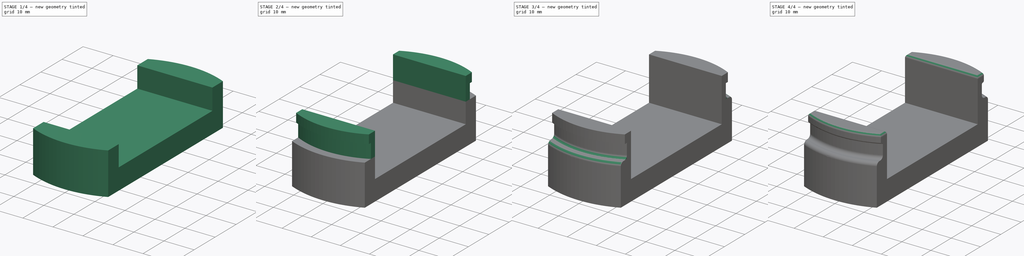
[diagram: build sequence overview — one tinted view per stage of 4, left to right]
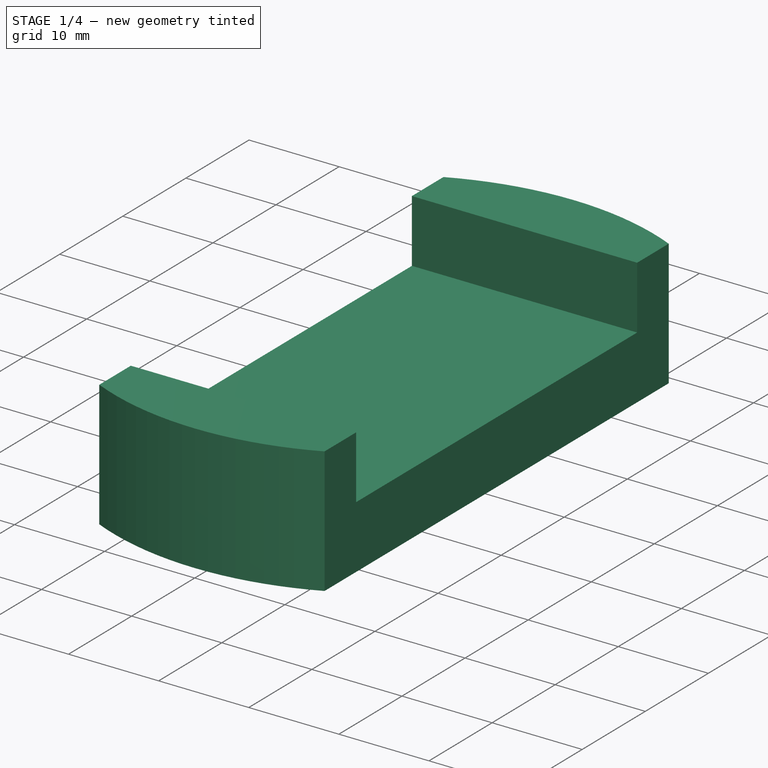
[diagram: stage 1 of 4 — iso view after this stage's code; geometry added in this stage tinted green]
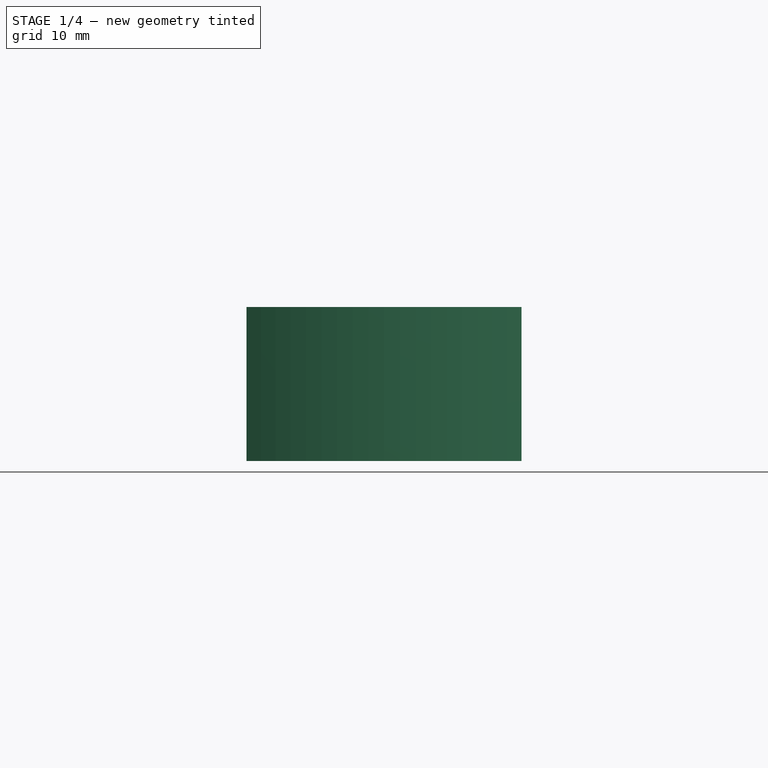
[diagram: stage 1 of 4 — front view after this stage's code; geometry added in this stage tinted green]
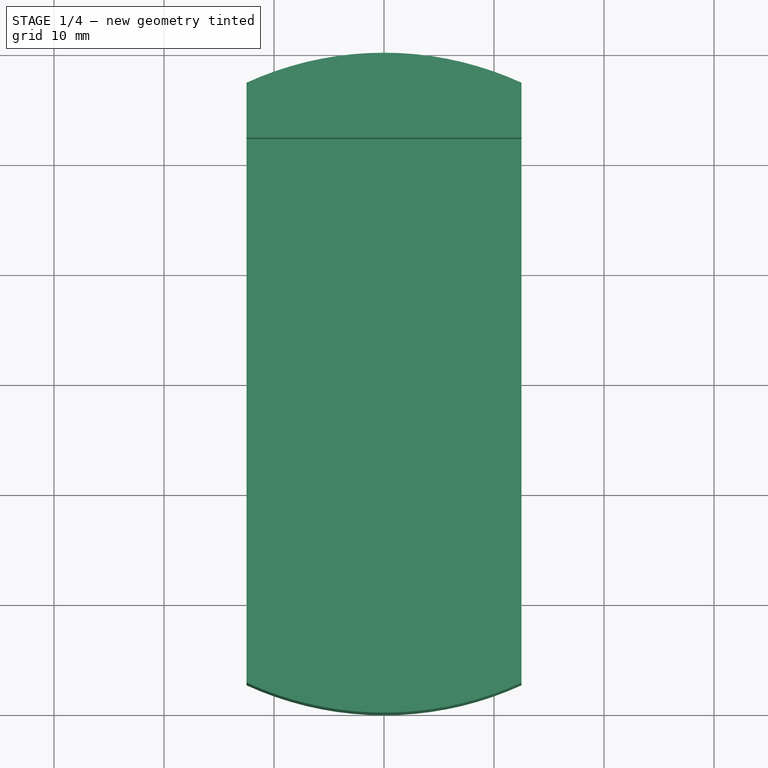
[diagram: stage 1 of 4 — top view after this stage's code; geometry added in this stage tinted green]
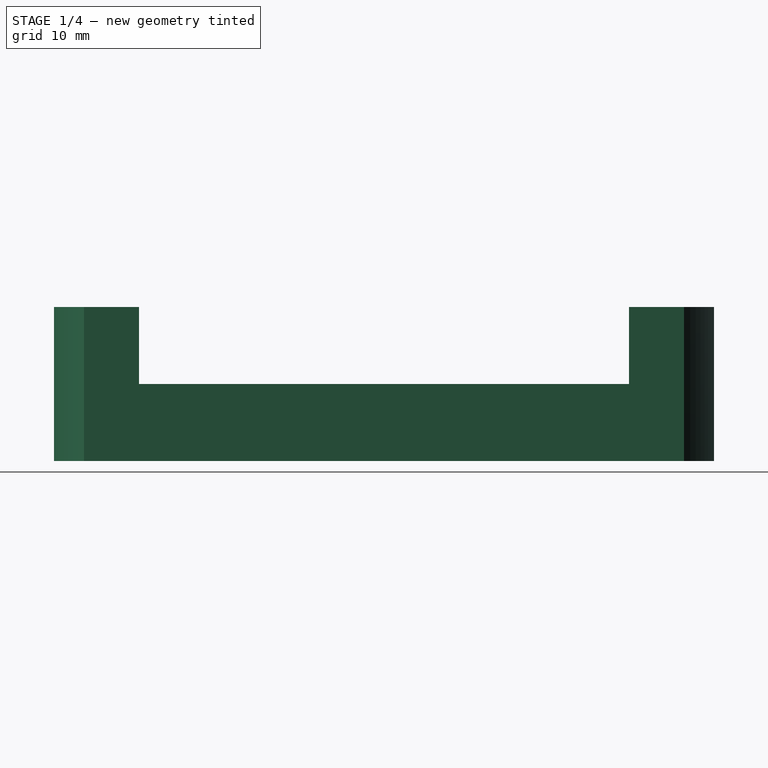
[diagram: stage 1 of 4 — right view after this stage's code; geometry added in this stage tinted green]
FCSTD DOCUMENT  (FreeCAD 0.21R33771 (Git))
Label: Tiguan-VentMount
License: All rights reserved
LicenseURL: https://en.wikipedia.org/wiki/All_rights_reserved
objects: Sketcher::SketchObject×5, PartDesign::Pad×4, PartDesign::Fillet×4, PartDesign::Pocket×1, PartDesign::Body×1
note: 24 computed .brp shape members not serialized (recipe doc carries the construction recipe); baked Part::Feature solids carry a one-line shape summary decoded from their .brp

FEATURE [Sketcher::SketchObject] Sketch
  FullyConstrained = true
  MapMode = 5
  Support = -> [XY_Plane]
  sketch-geometry (4):
    g0: LineSegment StartX=-12.5 StartY=27.2718 StartZ=0 EndX=-12.5 EndY=-27.2718 EndZ=0
    g1: LineSegment StartX=12.5 StartY=27.2718 StartZ=0 EndX=12.5 EndY=-27.2718 EndZ=0
    g2: ArcOfCircle CenterX=0 CenterY=0 CenterZ=0 NormalX=0 NormalY=0 NormalZ=1 AngleXU=0 Radius=30 StartAngle=1.14102 EndAngle=2.00057
    g3: ArcOfCircle CenterX=0 CenterY=0 CenterZ=0 NormalX=0 NormalY=0 NormalZ=1 AngleXU=0 Radius=30 StartAngle=4.28261 EndAngle=5.14216
  constraints (12):
    c: Vertical(g0)
    c: Vertical(g1)
    c: Coincident(g2,g-1)
    c: Coincident(g2,g0)
    c: Coincident(g2,g1)
    c: Coincident(g3,g2)
    c: Coincident(g3,g0)
    c: Coincident(g3,g1)
    c: Equal(g0,g1)
    c: Equal(g2,g3)
    c: Diameter(g2) = 60
    c: DistanceX(g0,g1) = 25
FEATURE [PartDesign::Pad] Pad
  Direction = (0,0,1)
  Length = 7
  Length2 = 10
  Profile = -> Sketch
  ReferenceAxis = -> Sketch [N_Axis]
  Type = 0
FEATURE [Sketcher::SketchObject] Sketch001
  ExternalGeometry = -> [Pad]
  FullyConstrained = true
  MapMode = 5
  Placement = pos=(0,0,7) rot=(0,0,1;0rad)
  Support = -> [Pad]
  sketch-geometry (8):
    g0: LineSegment StartX=-12.5 StartY=22.2718 StartZ=0 EndX=12.5 EndY=22.2718 EndZ=0
    g1: LineSegment StartX=-12.5 StartY=-22.2718 StartZ=0 EndX=12.5 EndY=-22.2718 EndZ=0
    g2: ArcOfCircle CenterX=5.753e-13 CenterY=-2.686e-13 CenterZ=0 NormalX=0 NormalY=0 NormalZ=1 AngleXU=0 Radius=30 StartAngle=4.28261 EndAngle=5.14216
    g3: ArcOfCircle CenterX=6.08e-13 CenterY=2.585e-13 CenterZ=0 NormalX=0 NormalY=0 NormalZ=1 AngleXU=0 Radius=30 StartAngle=1.14102 EndAngle=2.00057
    g4: LineSegment StartX=-12.5 StartY=22.2718 StartZ=0 EndX=-12.5 EndY=27.2718 EndZ=0
    g5: LineSegment StartX=12.5 StartY=27.2718 StartZ=0 EndX=12.5 EndY=22.2718 EndZ=0
    g6: LineSegment StartX=-12.5 StartY=-22.2718 StartZ=0 EndX=-12.5 EndY=-27.2718 EndZ=0
    g7: LineSegment StartX=12.5 StartY=-22.2718 StartZ=0 EndX=12.5 EndY=-27.2718 EndZ=0
  constraints (22):
    c: PointOnObject(g0,g-6)
    c: PointOnObject(g0,g-5)
    c: Horizontal(g0)
    c: PointOnObject(g1,g-6)
    c: PointOnObject(g1,g-5)
    c: Horizontal(g1)
    c: Coincident(g2,g-5)
    c: Coincident(g2,g-6)
    c: Equal(g2,g-4)
    c: Coincident(g3,g-6)
    c: Coincident(g3,g-5)
    c: Equal(g3,g-3)
    c: Coincident(g4,g0)
    c: Coincident(g4,g3)
    c: Coincident(g5,g3)
    c: Coincident(g5,g0)
    c: Coincident(g6,g1)
    c: Coincident(g6,g2)
    c: Coincident(g7,g1)
    c: Coincident(g7,g2)
    c: Equal(g4,g6)
    c: DistanceY(g0,g3) = 5
FEATURE [PartDesign::Pad] Pad001
  BaseFeature = -> Pad
  Direction = (0,0,1)
  Length = 7
  Length2 = 10
  Profile = -> Sketch001
  ReferenceAxis = -> Sketch001 [N_Axis]
  Type = 0
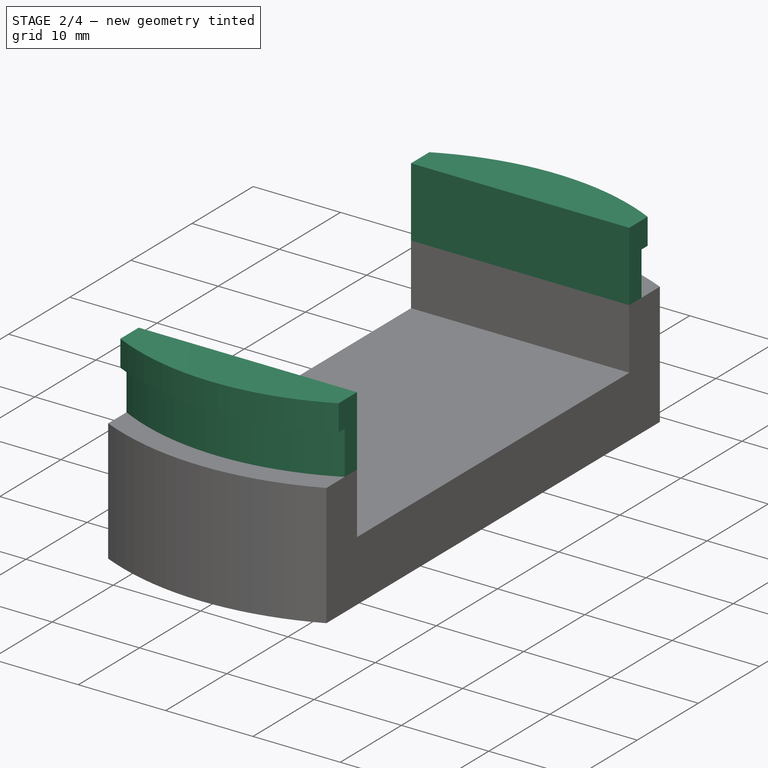
[diagram: stage 2 of 4 — iso view after this stage's code; geometry added in this stage tinted green]
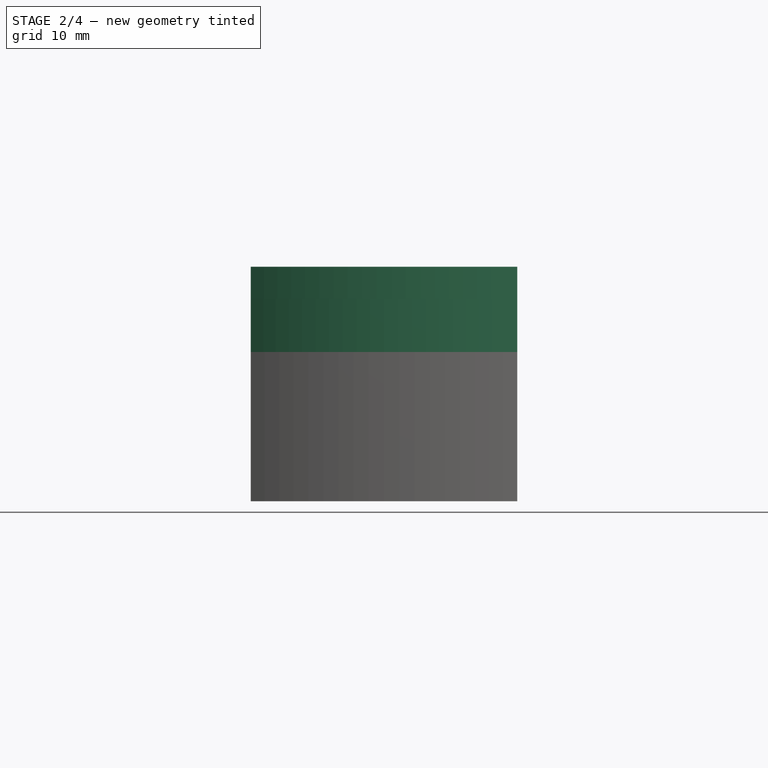
[diagram: stage 2 of 4 — front view after this stage's code; geometry added in this stage tinted green]
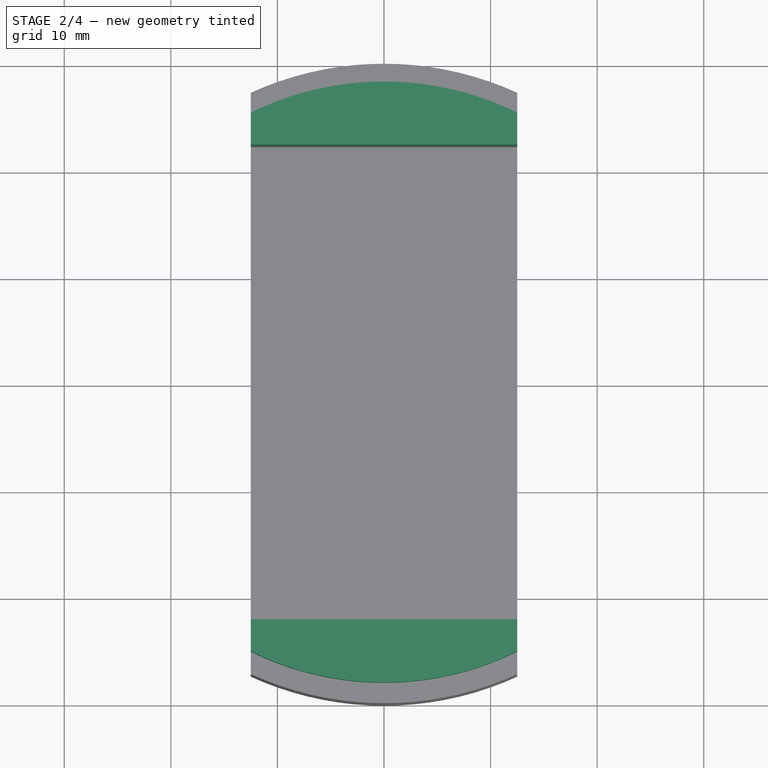
[diagram: stage 2 of 4 — top view after this stage's code; geometry added in this stage tinted green]
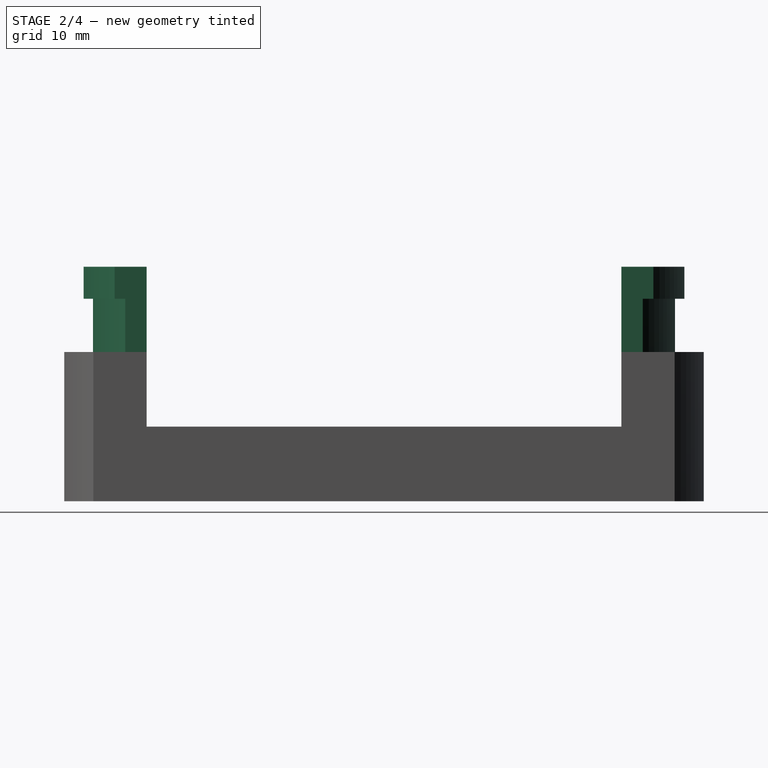
[diagram: stage 2 of 4 — right view after this stage's code; geometry added in this stage tinted green]
FEATURE [Sketcher::SketchObject] Sketch002
  ExternalGeometry = -> [Pad001]
  FullyConstrained = true
  MapMode = 5
  Placement = pos=(0,0,14) rot=(0,0,1;0rad)
  Support = -> [Pad001]
  sketch-geometry (13):
    g0: LineSegment StartX=-12.5 StartY=22.2718 StartZ=0 EndX=12.5 EndY=22.2718 EndZ=0
    g1: LineSegment StartX=-12.5 StartY=-22.2718 StartZ=0 EndX=12.5 EndY=-22.2718 EndZ=0
    g2: ArcOfCircle CenterX=4.4e-15 CenterY=2.9945e-12 CenterZ=0 NormalX=0 NormalY=0 NormalZ=1 AngleXU=0 Radius=27.3015 StartAngle=1.09522 EndAngle=2.04637
    g3: GeomPoint X=0 Y=27.3015 Z=0
    g4: LineSegment StartX=0 StartY=30 StartZ=0 EndX=0 EndY=27.3015 EndZ=0
    g5: ArcOfCircle CenterX=7e-16 CenterY=-2.9286e-12 CenterZ=0 NormalX=0 NormalY=0 NormalZ=1 AngleXU=0 Radius=27.3015 StartAngle=4.23681 EndAngle=5.18797
    g6: LineSegment StartX=0 StartY=-30 StartZ=0 EndX=0 EndY=-27.3015 EndZ=0
    g7: LineSegment StartX=-12.5 StartY=27.2718 StartZ=0 EndX=-11.3756 EndY=24.8186 EndZ=0
    g8: LineSegment StartX=-12.5 StartY=-27.2718 StartZ=0 EndX=-11.3756 EndY=-24.8186 EndZ=0
    g9: LineSegment StartX=12.5 StartY=-22.2718 StartZ=0 EndX=12.5 EndY=-24.2718 EndZ=0
    g10: LineSegment StartX=-12.5 StartY=-22.2718 StartZ=0 EndX=-12.5 EndY=-24.2718 EndZ=0
    g11: LineSegment StartX=-12.5 StartY=24.2718 StartZ=0 EndX=-12.5 EndY=22.2718 EndZ=0
    g12: LineSegment StartX=12.5 StartY=24.2718 StartZ=0 EndX=12.5 EndY=22.2718 EndZ=0
  constraints (35):
    c: Coincident(g0,g-5)
    c: Coincident(g0,g-5)
    c: Coincident(g1,g-8)
    c: PointOnObject(g2,g-3)
    c: Symmetric(g2,g2,g-2)
    c: PointOnObject(g3,g2)
    c: PointOnObject(g3,g-2)
    c: PointOnObject(g4,g-9)
    c: Coincident(g4,g3)
    c: Vertical(g4)
    c: DistanceY(g0,g2) = 2
    c: PointOnObject(g5,g-6)
    c: Symmetric(g5,g5,g-2)
    c: PointOnObject(g6,g-10)
    c: PointOnObject(g6,g5)
    c: Vertical(g6)
    c: PointOnObject(g6,g-2)
    c: Coincident(g7,g-9)
    c: PointOnObject(g7,g2)
    c: Perpendicular(g2,g7)
    c: Equal(g7,g4)
    c: Coincident(g8,g-10)
    c: PointOnObject(g8,g5)
    c: Perpendicular(g5,g8)
    c: DistanceY(g5,g1) = 2
    c: Coincident(g1,g-7)
    c: Equal(g8,g6)
    c: Coincident(g9,g1)
    c: Coincident(g9,g5)
    c: Coincident(g10,g1)
    c: Coincident(g10,g5)
    c: Coincident(g11,g2)
    c: Coincident(g11,g0)
    c: Coincident(g12,g2)
    c: Coincident(g12,g0)
FEATURE [PartDesign::Pad] Pad002
  BaseFeature = -> Pad001
  Direction = (0,0,1)
  Length = 5
  Length2 = 10
  Profile = -> Sketch002
  ReferenceAxis = -> Sketch002 [N_Axis]
  Type = 0
FEATURE [Sketcher::SketchObject] Sketch003
  ExternalGeometry = -> [Pad002]
  FullyConstrained = true
  MapMode = 5
  Placement = pos=(0,0,19) rot=(0,0,1;0rad)
  Support = -> [Pad002]
  sketch-geometry (12):
    g0: LineSegment StartX=-12.5 StartY=-22.2718 StartZ=0 EndX=12.5 EndY=-22.2718 EndZ=0
    g1: LineSegment StartX=-12.5 StartY=22.2718 StartZ=0 EndX=12.5 EndY=22.2718 EndZ=0
    g2: LineSegment StartX=-12.5 StartY=-22.2718 StartZ=0 EndX=-12.5 EndY=-25.2718 EndZ=0
    g3: LineSegment StartX=12.5 StartY=-22.2718 StartZ=0 EndX=12.5 EndY=-25.2718 EndZ=0
    g4: LineSegment StartX=-12.5 StartY=22.2718 StartZ=0 EndX=-12.5 EndY=25.2718 EndZ=0
    g5: LineSegment StartX=12.5 StartY=22.2718 StartZ=0 EndX=12.5 EndY=25.2718 EndZ=0
    g6: ArcOfCircle CenterX=1.4e-15 CenterY=2.9584e-12 CenterZ=0 NormalX=0 NormalY=0 NormalZ=1 AngleXU=0 Radius=28.1942 StartAngle=1.11146 EndAngle=2.03013
    g7: ArcOfCircle CenterX=1.9e-15 CenterY=-2.9337e-12 CenterZ=0 NormalX=0 NormalY=0 NormalZ=1 AngleXU=0 Radius=28.1942 StartAngle=4.25305 EndAngle=5.17173
    g8: LineSegment StartX=0 StartY=28.1942 StartZ=0 EndX=0 EndY=27.3015 EndZ=0
    g9: LineSegment StartX=12.5 StartY=25.2718 StartZ=0 EndX=12.1042 EndY=24.4716 EndZ=0
    g10: LineSegment StartX=0 StartY=-27.3015 StartZ=0 EndX=0 EndY=-28.1942 EndZ=0
    g11: LineSegment StartX=-12.5 StartY=-25.2718 StartZ=0 EndX=-12.1042 EndY=-24.4716 EndZ=0
  constraints (36):
    c: Coincident(g0,g-4)
    c: Coincident(g1,g-3)
    c: Coincident(g2,g0)
    c: Coincident(g3,g0)
    c: Vertical(g2)
    c: Vertical(g3)
    c: Coincident(g4,g1)
    c: Coincident(g5,g1)
    c: Vertical(g5)
    c: Vertical(g4)
    c: Coincident(g6,g4)
    c: Coincident(g6,g5)
    c: Coincident(g1,g-3)
    c: Equal(g4,g5)
    c: Coincident(g7,g2)
    c: Coincident(g7,g3)
    c: Coincident(g0,g-4)
    c: Equal(g2,g3)
    c: PointOnObject(g8,g6)
    c: PointOnObject(g8,g-6)
    c: Vertical(g8)
    c: PointOnObject(g8,g-2)
    c: Coincident(g9,g5)
    c: PointOnObject(g9,g-6)
    c: Perpendicular(g-6,g9)
    c: Equal(g8,g9)
    c: DistanceY(g1,g5) = 3
    c: PointOnObject(g10,g-5)
    c: PointOnObject(g10,g7)
    c: Vertical(g10)
    c: Coincident(g11,g2)
    c: PointOnObject(g11,g-5)
    c: Perpendicular(g-5,g11)
    c: Equal(g11,g10)
    c: Equal(g5,g3)
    c: PointOnObject(g10,g-2)
FEATURE [PartDesign::Pad] Pad003
  BaseFeature = -> Pad002
  Direction = (0,0,1)
  Length = 3
  Length2 = 10
  Profile = -> Sketch003
  ReferenceAxis = -> Sketch003 [N_Axis]
  Type = 0
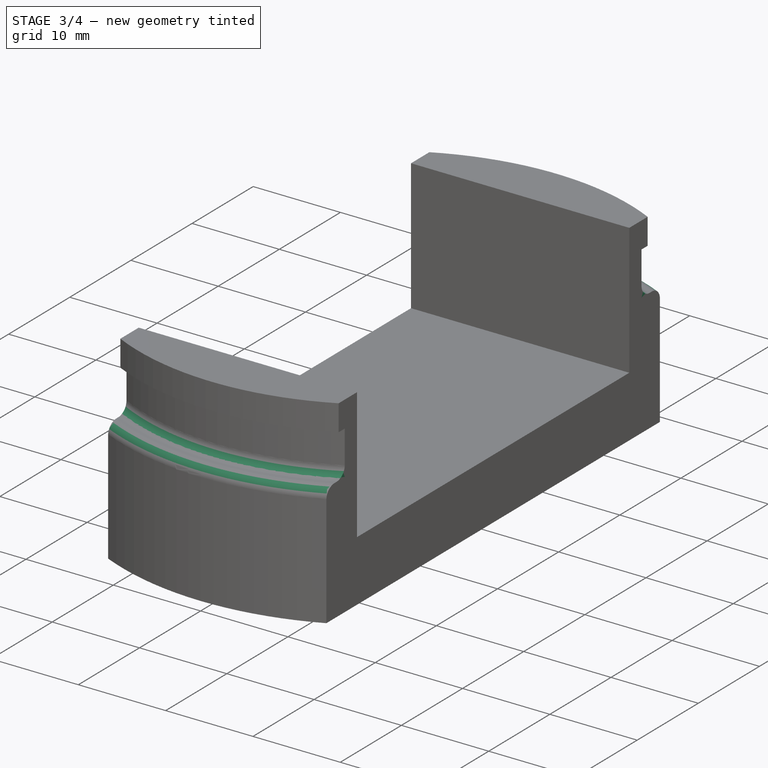
[diagram: stage 3 of 4 — iso view after this stage's code; geometry added in this stage tinted green]
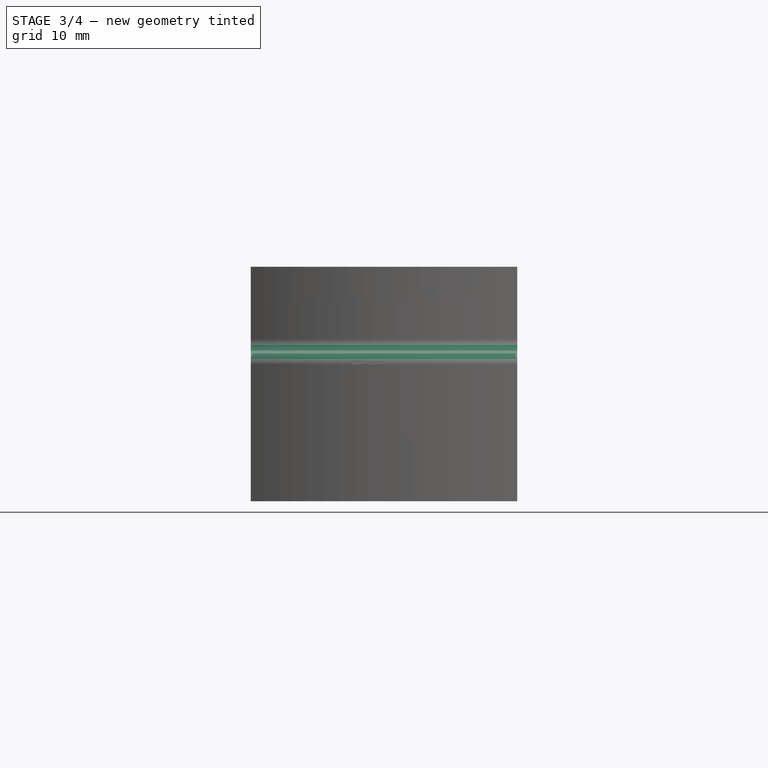
[diagram: stage 3 of 4 — front view after this stage's code; geometry added in this stage tinted green]
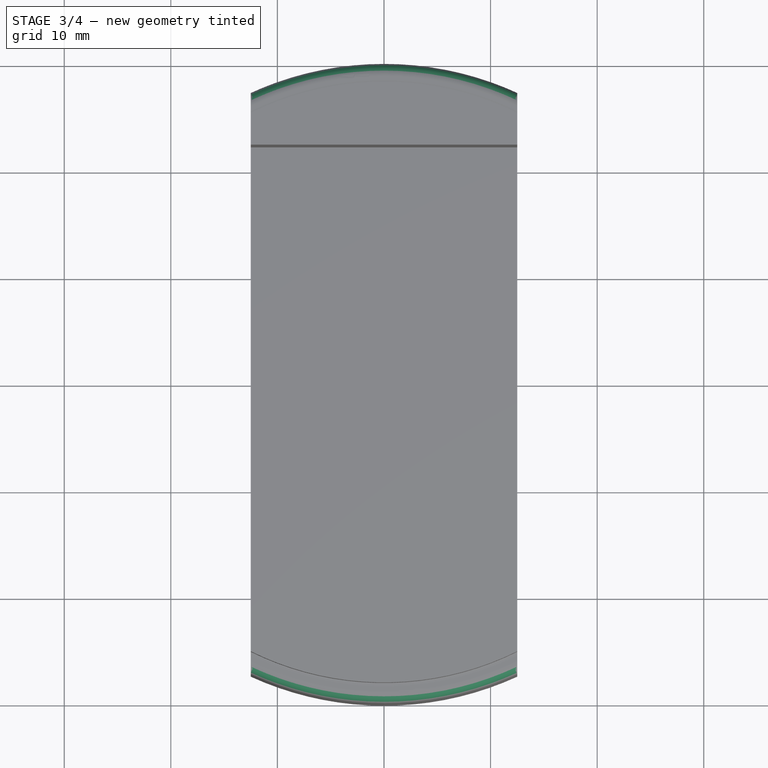
[diagram: stage 3 of 4 — top view after this stage's code; geometry added in this stage tinted green]
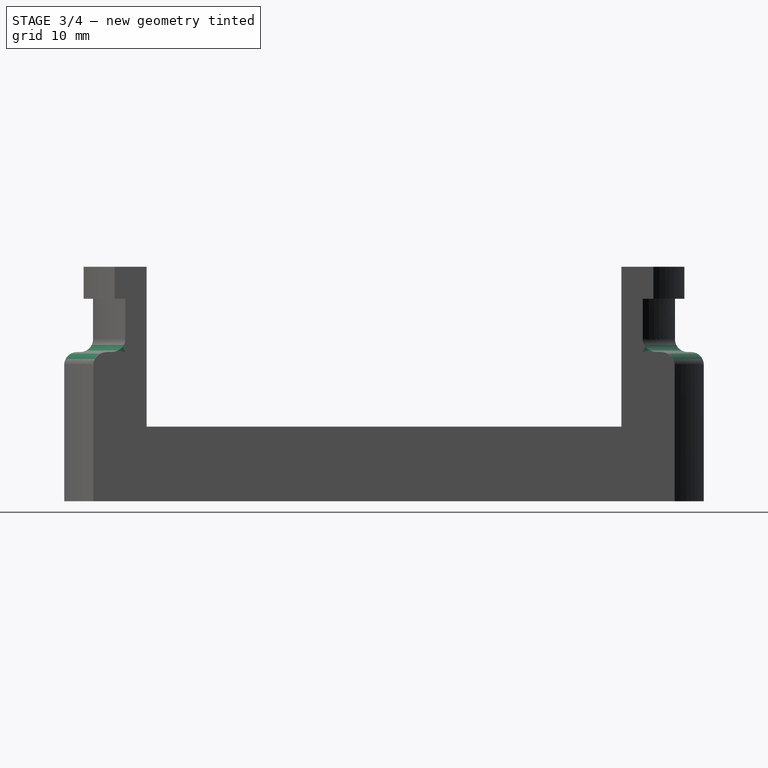
[diagram: stage 3 of 4 — right view after this stage's code; geometry added in this stage tinted green]
FEATURE [Sketcher::SketchObject] Sketch004
  FullyConstrained = true
  MapMode = 5
  Placement = pos=(0,0,0) rot=(1,0,0;3.14159rad)
  Support = -> [Pad003]
  sketch-geometry (2):
    g0: Circle CenterX=0 CenterY=0 CenterZ=0 NormalX=0 NormalY=0 NormalZ=1 AngleXU=0 Radius=10
    g1: Circle CenterX=0 CenterY=0 CenterZ=0 NormalX=0 NormalY=0 NormalZ=1 AngleXU=0 Radius=1.5
  constraints (4):
    c: Coincident(g0,g-1)
    c: Diameter(g0) = 20
    c: Coincident(g1,g0)
    c: Diameter(g1) = 3
FEATURE [PartDesign::Pocket] Pocket
  BaseFeature = -> Pad003
  Direction = (0,0,1)
  Length = 4
  Length2 = 5
  Profile = -> Sketch004
  ReferenceAxis = -> Sketch004 [N_Axis]
  Type = 0
FEATURE [PartDesign::Fillet] Fillet
  Base = -> Pocket [Edge78,Edge16]
  BaseFeature = -> Pocket
  Radius = 1
  SupportTransform = false
  UseAllEdges = false
FEATURE [PartDesign::Fillet] Fillet001
  Base = -> Fillet [Edge43,Edge24,Edge52,Edge41]
  BaseFeature = -> Fillet
  Radius = 1.2
  SupportTransform = false
  UseAllEdges = false
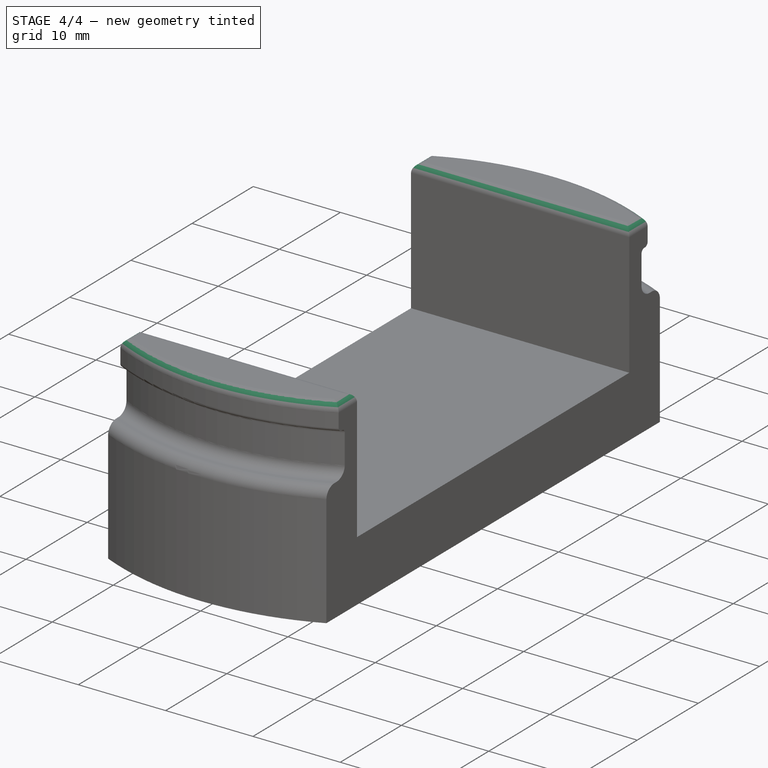
[diagram: stage 4 of 4 — iso view after this stage's code; geometry added in this stage tinted green]
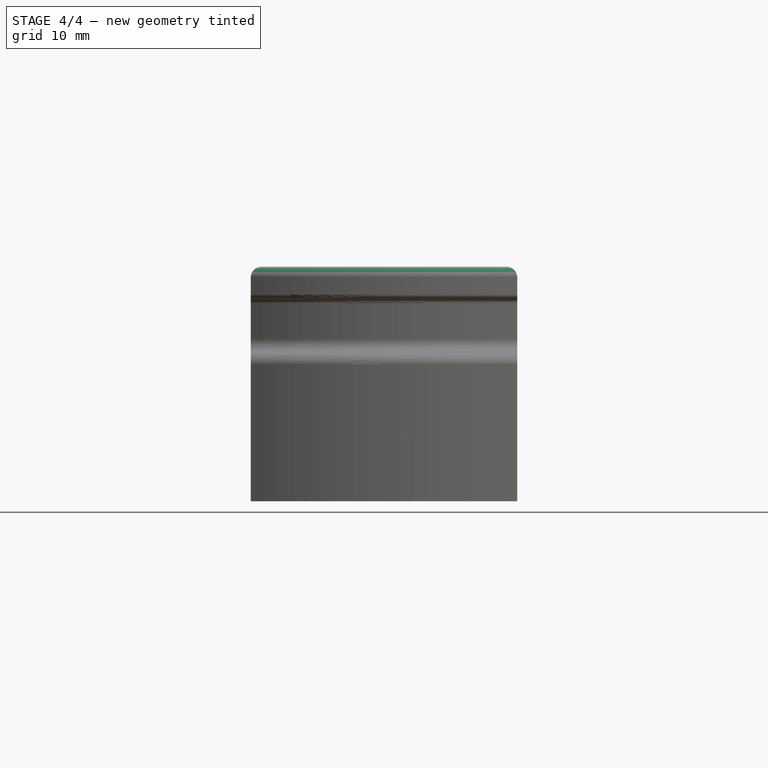
[diagram: stage 4 of 4 — front view after this stage's code; geometry added in this stage tinted green]
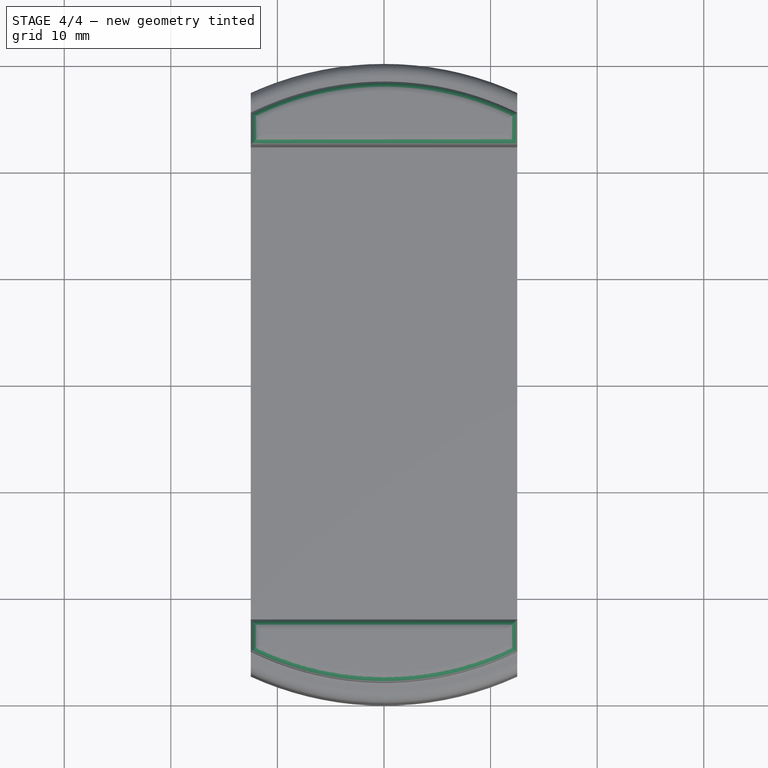
[diagram: stage 4 of 4 — top view after this stage's code; geometry added in this stage tinted green]
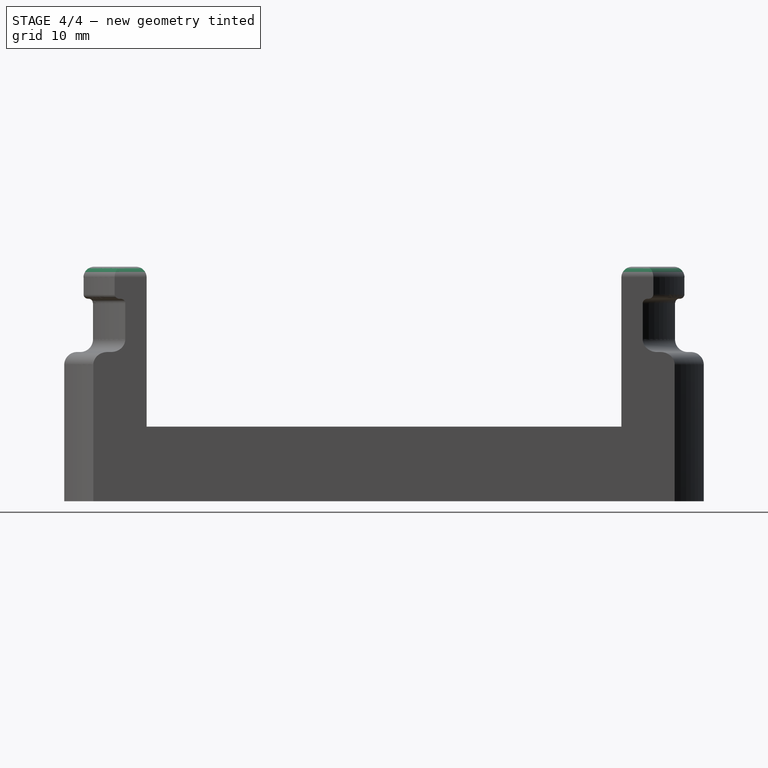
[diagram: stage 4 of 4 — right view after this stage's code; geometry added in this stage tinted green]
FEATURE [PartDesign::Fillet] Fillet002
  Base = -> Fillet001 [Edge88,Edge99,Edge52,Edge78]
  BaseFeature = -> Fillet001
  Radius = 0.42
  SupportTransform = false
  UseAllEdges = false
FEATURE [PartDesign::Fillet] Fillet003
  Base = -> Fillet002 [Edge114,Edge102,Edge109,Edge116,Edge42,Edge38,Edge18,Edge41]
  BaseFeature = -> Fillet002
  Radius = 1
  SupportTransform = false
  UseAllEdges = false
FEATURE [PartDesign::Body] Body  label="Körper"
  Group = -> [Sketch,Pad,Sketch001,Pad001,Sketch002,Pad002,Sketch003,Pad003,Sketch004,Pocket,Fillet,Fillet001,Fillet002,Fillet003]
  Origin = -> Origin
  Tip = -> Fillet003
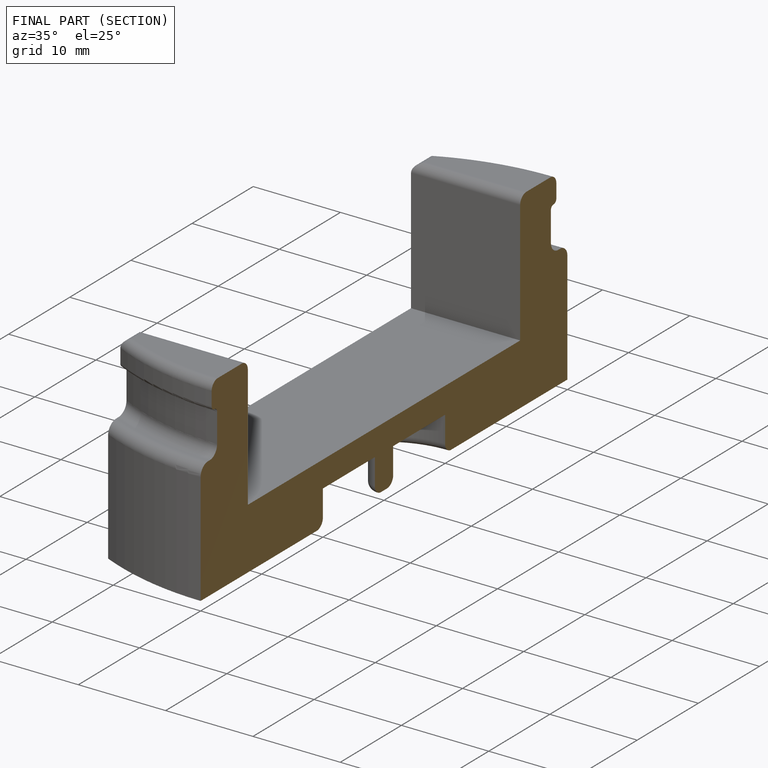
[diagram: finished part — half-section view (interior)]
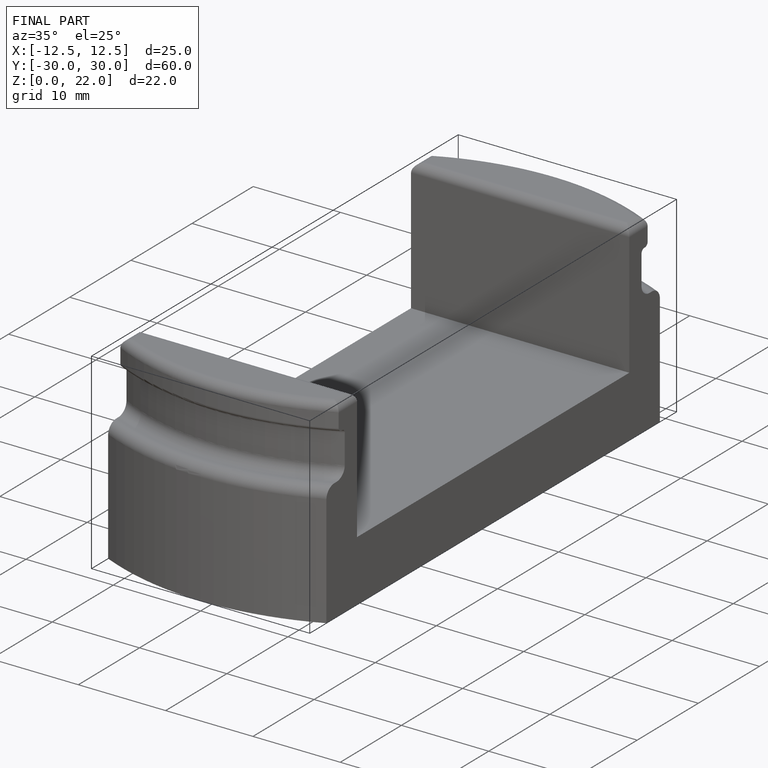
[diagram: finished part — iso view with bounding-box wireframe]
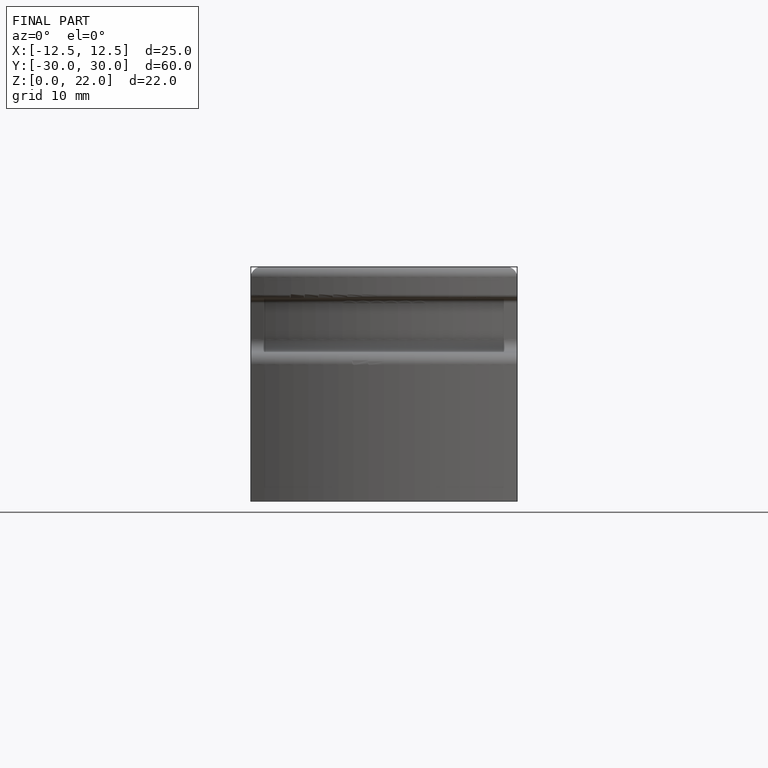
[diagram: finished part — front view with bounding-box wireframe]
